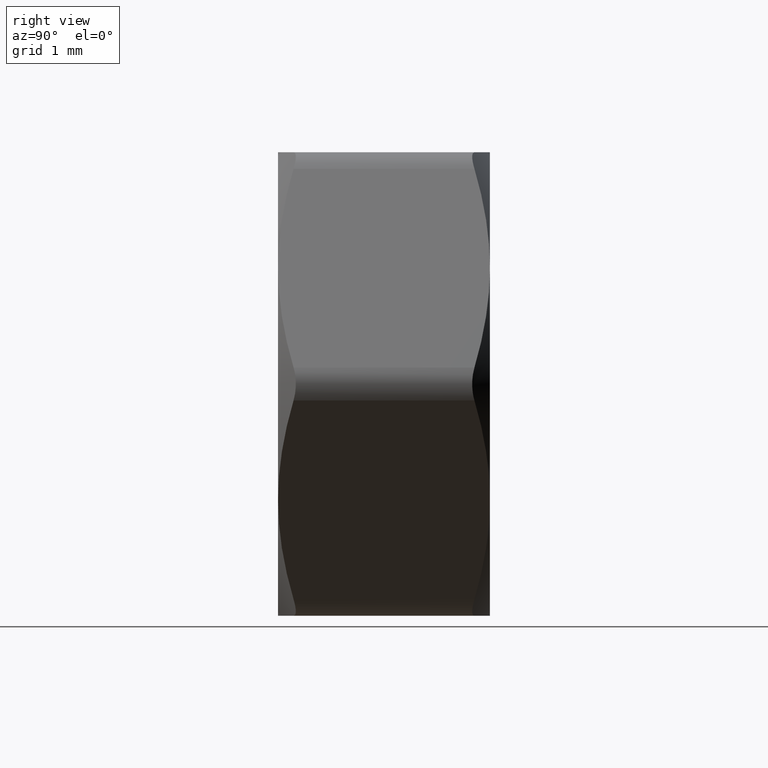
[diagram: clean part render]
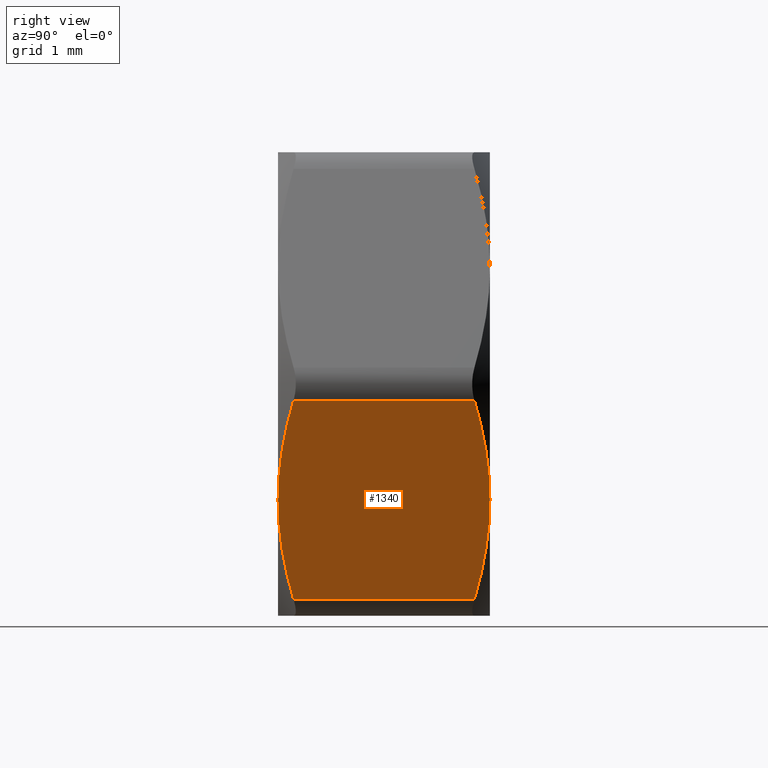
[diagram: same view with one face highlighted and labeled with its STEP entity id]
A machine part, right view. The second image highlights one B-rep face of the part: STEP entity #1340.
In plain terms, the highlighted planar face has unit normal (-0.866, 0, 0.5).
Its self-contained STEP definition (entity closure, byte-faithful):
#8 = CARTESIAN_POINT ( 'NONE',  ( 3.755510572827375900, 1.438623072130314200, -0.4952648795008763300 ) ) ;
#100 = ORIENTED_EDGE ( 'NONE', *, *, #1420, .T. ) ;
#146 = B_SPLINE_CURVE_WITH_KNOTS ( 'NONE', 3,
 ( #1572, #1889, #465, #928 ),
 .UNSPECIFIED., .F., .F.,
 ( 4, 4 ),
 ( 0.0002971722857521893900, 0.002044882221487533200 ),
 .UNSPECIFIED. ) ;
#156 = CARTESIAN_POINT ( 'NONE',  ( 3.897114317033258500, -1.366101065750564100, -0.2499999999943001400 ) ) ;
#209 = CARTESIAN_POINT ( 'NONE',  ( 3.897114317029971800, 1.366101065752247200, -0.2499999999999927000 ) ) ;
#331 = VERTEX_POINT ( 'NONE', #997 ) ;
#334 = CARTESIAN_POINT ( 'NONE',  ( 3.612771519549222300, 1.497437231825316000, -0.7424961720029192900 ) ) ;
#352 = FACE_OUTER_BOUND ( 'NONE', #1218, .T. ) ;
#358 = VERTEX_POINT ( 'NONE', #209 ) ;
#360 = EDGE_CURVE ( 'NONE', #841, #331, #607, .T. ) ;
#465 = CARTESIAN_POINT ( 'NONE',  ( 2.736813175116610300, 1.600000000000004800, -2.259700529874122800 ) ) ;
#470 = CARTESIAN_POINT ( 'NONE',  ( 3.031088913245535600, 1.599999999999999900, -1.749999999999998400 ) ) ;
#545 = DIRECTION ( 'NONE',  ( -0.0000000000000000000, 1.000000000000000000, -0.0000000000000000000 ) ) ;
#562 = AXIS2_PLACEMENT_3D ( 'NONE', #1703, #1895, #768 ) ;
#599 = VERTEX_POINT ( 'NONE', #470 ) ;
#607 = B_SPLINE_CURVE_WITH_KNOTS ( 'NONE', 3,
 ( #989, #1801, #689, #1868 ),
 .UNSPECIFIED., .F., .F.,
 ( 4, 4 ),
 ( 0.0002971722857521896000, 0.002044882221487531500 ),
 .UNSPECIFIED. ) ;
#645 = CARTESIAN_POINT ( 'NONE',  ( 2.449406306941841000, -1.497437231825316600, -2.757503827997073800 ) ) ;
#646 = ORIENTED_EDGE ( 'NONE', *, *, #1599, .T. ) ;
#688 = ORIENTED_EDGE ( 'NONE', *, *, #914, .T. ) ;
#689 = CARTESIAN_POINT ( 'NONE',  ( 3.325364651374453000, -1.600000000000004500, -1.240299470125870300 ) ) ;
#768 = DIRECTION ( 'NONE',  ( 0.4999999999999997800, 0.0000000000000000000, 0.8660254037844387100 ) ) ;
#814 = CARTESIAN_POINT ( 'NONE',  ( 2.737935425120993300, -1.578227301213956900, -2.257756735847737500 ) ) ;
#841 = VERTEX_POINT ( 'NONE', #156 ) ;
#843 = VERTEX_POINT ( 'NONE', #2064 ) ;
#914 = EDGE_CURVE ( 'NONE', #599, #358, #1823, .T. ) ;
#928 = CARTESIAN_POINT ( 'NONE',  ( 3.031088913245535600, 1.599999999999999900, -1.749999999999998400 ) ) ;
#942 = CARTESIAN_POINT ( 'NONE',  ( 3.324242401370070400, 1.578227301213956900, -1.242243264152256700 ) ) ;
#967 = CARTESIAN_POINT ( 'NONE',  ( 3.897114317029971800, 1.366101065752247200, -0.2499999999999927000 ) ) ;
#989 = CARTESIAN_POINT ( 'NONE',  ( 3.897114317033258500, -1.366101065750564100, -0.2499999999943001400 ) ) ;
#997 = CARTESIAN_POINT ( 'NONE',  ( 3.031088913245535600, -1.599999999999999900, -1.749999999999998400 ) ) ;
#1081 = B_SPLINE_CURVE_WITH_KNOTS ( 'NONE', 3,
 ( #1925, #1129, #814, #645, #1433, #1937 ),
 .UNSPECIFIED., .F., .F.,
 ( 4, 2, 4 ),
 ( 0.002044882221487531500, 0.002915149854128587000, 0.003785417486769642500 ),
 .UNSPECIFIED. ) ;
#1129 = CARTESIAN_POINT ( 'NONE',  ( 2.884555072172297700, -1.600000000000004300, -2.003804057767061100 ) ) ;
#1182 = CARTESIAN_POINT ( 'NONE',  ( 2.165063509461090600, -1.366101065752247000, -3.250000000000001800 ) ) ;
#1218 = EDGE_LOOP ( 'NONE', ( #688, #100, #1406, #646, #1318, #1719 ) ) ;
#1238 = VECTOR ( 'NONE', #1251, 1000.000000000000000 ) ;
#1251 = DIRECTION ( 'NONE',  ( 0.0000000000000000000, -1.000000000000000000, 0.0000000000000000000 ) ) ;
#1312 = VECTOR ( 'NONE', #545, 1000.000000000000000 ) ;
#1318 = ORIENTED_EDGE ( 'NONE', *, *, #2022, .T. ) ;
#1340 = ADVANCED_FACE ( 'NONE', ( #352 ), #1687, .F. ) ;
#1395 = CARTESIAN_POINT ( 'NONE',  ( 3.031088913245535600, 1.599999999999999900, -1.749999999999998400 ) ) ;
#1406 = ORIENTED_EDGE ( 'NONE', *, *, #360, .T. ) ;
#1420 = EDGE_CURVE ( 'NONE', #358, #841, #1635, .T. ) ;
#1433 = CARTESIAN_POINT ( 'NONE',  ( 2.306667253663686100, -1.438623072130314400, -3.004735120499118400 ) ) ;
#1488 = EDGE_CURVE ( 'NONE', #843, #599, #146, .T. ) ;
#1572 = CARTESIAN_POINT ( 'NONE',  ( 2.165063509457803900, 1.366101065750563700, -3.250000000005694100 ) ) ;
#1599 = EDGE_CURVE ( 'NONE', #331, #1967, #1081, .T. ) ;
#1635 = LINE ( 'NONE', #2051, #1238 ) ;
#1639 = CARTESIAN_POINT ( 'NONE',  ( 2.165063509461091100, 1.600000000000000100, -3.250000000000000900 ) ) ;
#1687 = PLANE ( 'NONE',  #562 ) ;
#1703 = CARTESIAN_POINT ( 'NONE',  ( 4.041451884327378800, 1.600000000000000100, 7.372497420983751600E-015 ) ) ;
#1719 = ORIENTED_EDGE ( 'NONE', *, *, #1488, .T. ) ;
#1735 = CARTESIAN_POINT ( 'NONE',  ( 3.177622754318765200, 1.600000000000004300, -1.496195942232931600 ) ) ;
#1736 = LINE ( 'NONE', #1639, #1312 ) ;
#1801 = CARTESIAN_POINT ( 'NONE',  ( 3.613280654127128500, -1.511465772224716500, -0.7416143250460958100 ) ) ;
#1823 = B_SPLINE_CURVE_WITH_KNOTS ( 'NONE', 3,
 ( #1395, #1735, #942, #334, #8, #967 ),
 .UNSPECIFIED., .F., .F.,
 ( 4, 2, 4 ),
 ( 0.002044882221487533200, 0.002915149854128587900, 0.003785417486769642100 ),
 .UNSPECIFIED. ) ;
#1868 = CARTESIAN_POINT ( 'NONE',  ( 3.031088913245535600, -1.599999999999999900, -1.749999999999998400 ) ) ;
#1889 = CARTESIAN_POINT ( 'NONE',  ( 2.448897172363934300, 1.511465772224716500, -2.758385674953897700 ) ) ;
#1895 = DIRECTION ( 'NONE',  ( -0.8660254037844388200, 0.0000000000000000000, 0.4999999999999998300 ) ) ;
#1925 = CARTESIAN_POINT ( 'NONE',  ( 3.031088913245535600, -1.599999999999999900, -1.749999999999998400 ) ) ;
#1937 = CARTESIAN_POINT ( 'NONE',  ( 2.165063509461090600, -1.366101065752247000, -3.250000000000001800 ) ) ;
#1967 = VERTEX_POINT ( 'NONE', #1182 ) ;
#2022 = EDGE_CURVE ( 'NONE', #1967, #843, #1736, .T. ) ;
#2051 = CARTESIAN_POINT ( 'NONE',  ( 3.897114317029971800, 1.600000000000000100, -0.2499999999999928400 ) ) ;
#2064 = CARTESIAN_POINT ( 'NONE',  ( 2.165063509457803900, 1.366101065750563700, -3.250000000005694100 ) ) ;